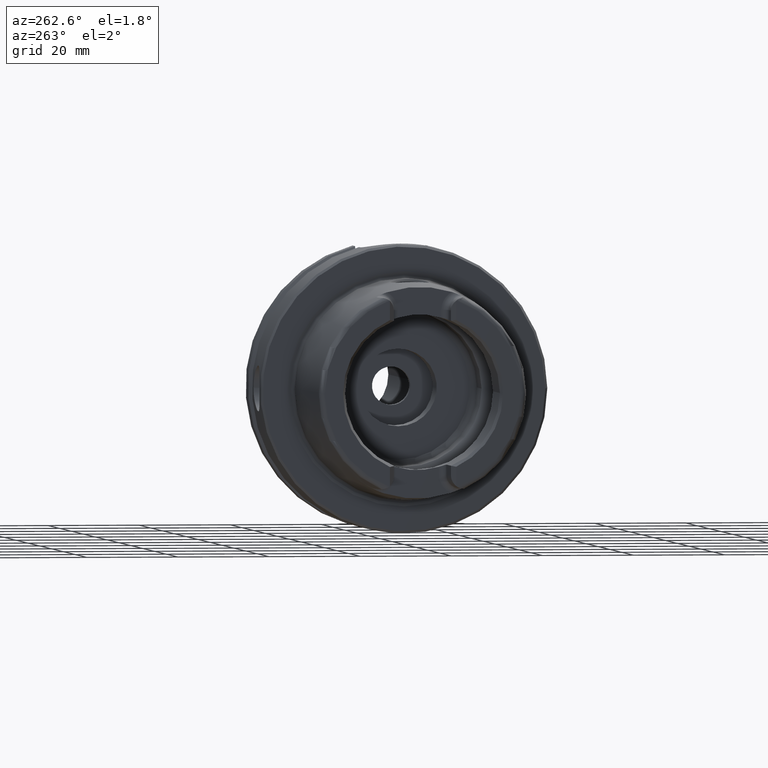
[diagram: clean part render]
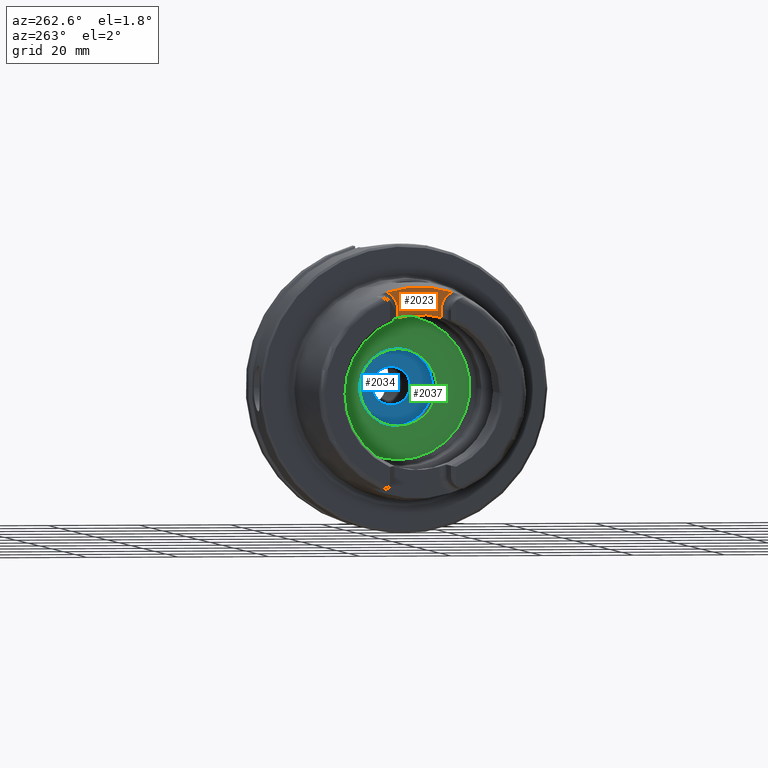
[diagram: same view with three faces highlighted in distinct colors, each labeled with its STEP entity id]
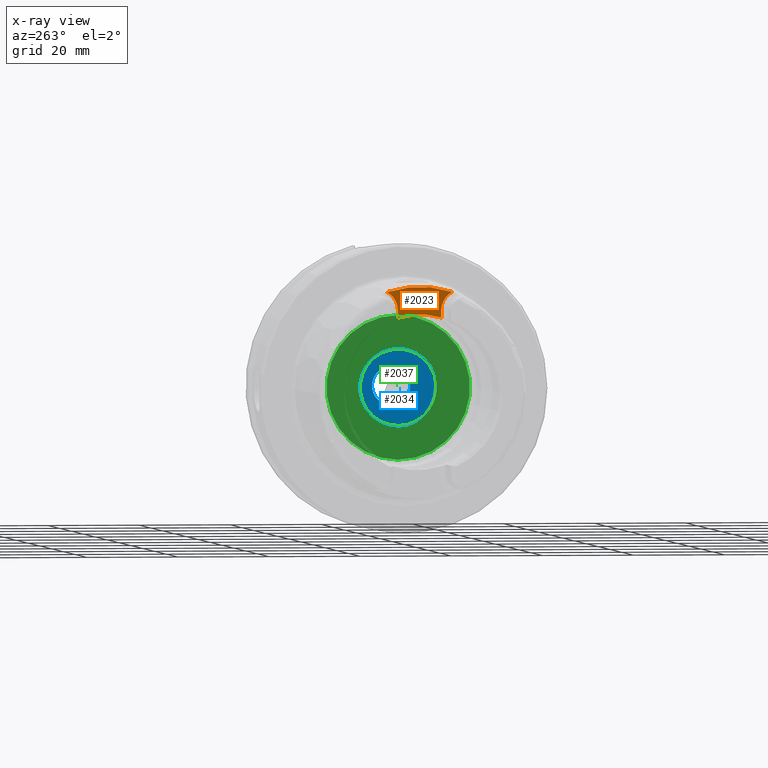
[diagram: x-ray of the same camera — body ghosted, the three highlighted faces saturated]
A machine part, auxiliary view with three faces highlighted in distinct colors.
The next image is the same camera in x-ray (body ghosted, the three faces saturated) — at least one of them is partly hidden behind the body in this view.
Their STEP definitions:

[orange] entity #2023 — the highlighted planar face has unit normal (-1, 0, 0).
#142=PLANE('',#2260);
#298=FACE_OUTER_BOUND('',#421,.T.);
#421=EDGE_LOOP('',(#1792,#1793,#1794,#1795,#1796,#1797));
#541=LINE('',#4207,#647);
#542=LINE('',#4236,#648);
#647=VECTOR('',#2738,10.);
#648=VECTOR('',#2751,10.);
#697=CIRCLE('',#2140,23.0180260521042);
#742=CIRCLE('',#2236,4.38);
#744=CIRCLE('',#2239,4.38);
#754=CIRCLE('',#2261,17.);
#864=VERTEX_POINT('',#3398);
#865=VERTEX_POINT('',#3413);
#958=VERTEX_POINT('',#4204);
#959=VERTEX_POINT('',#4206);
#960=VERTEX_POINT('',#4221);
#961=VERTEX_POINT('',#4225);
#1087=EDGE_CURVE('',#864,#865,#697,.T.);
#1234=EDGE_CURVE('',#958,#959,#541,.T.);
#1236=EDGE_CURVE('',#865,#958,#742,.T.);
#1238=EDGE_CURVE('',#960,#864,#744,.T.);
#1240=EDGE_CURVE('',#961,#960,#542,.T.);
#1256=EDGE_CURVE('',#959,#961,#754,.T.);
#1792=ORIENTED_EDGE('',*,*,#1236,.F.);
#1793=ORIENTED_EDGE('',*,*,#1087,.F.);
#1794=ORIENTED_EDGE('',*,*,#1238,.F.);
#1795=ORIENTED_EDGE('',*,*,#1240,.F.);
#1796=ORIENTED_EDGE('',*,*,#1256,.F.);
#1797=ORIENTED_EDGE('',*,*,#1234,.F.);
#2023=ADVANCED_FACE('',(#298),#142,.T.);
#2140=AXIS2_PLACEMENT_3D('',#3414,#2496,#2497);
#2236=AXIS2_PLACEMENT_3D('',#4219,#2741,#2742);
#2239=AXIS2_PLACEMENT_3D('',#4223,#2747,#2748);
#2260=AXIS2_PLACEMENT_3D('',#4284,#2794,#2795);
#2261=AXIS2_PLACEMENT_3D('',#4285,#2796,#2797);
#2496=DIRECTION('center_axis',(1.,0.,0.));
#2497=DIRECTION('ref_axis',(0.,1.,0.));
#2738=DIRECTION('',(0.,-1.58830189502884E-16,-1.));
#2741=DIRECTION('center_axis',(-1.,0.,0.));
#2742=DIRECTION('ref_axis',(0.,0.601141749549969,0.799142413433302));
#2747=DIRECTION('center_axis',(-1.,0.,0.));
#2748=DIRECTION('ref_axis',(0.,-0.601141749549969,0.799142413433301));
#2751=DIRECTION('',(0.,-1.58830189502884E-16,1.));
#2794=DIRECTION('center_axis',(-1.,0.,0.));
#2795=DIRECTION('ref_axis',(0.,0.,1.));
#2796=DIRECTION('center_axis',(-1.,0.,0.));
#2797=DIRECTION('ref_axis',(0.,1.,0.));
#3398=CARTESIAN_POINT('',(-26.,7.14127219004964,21.8822246319466));
#3413=CARTESIAN_POINT('',(-26.,-7.14127219004964,21.8822246319466));
#3414=CARTESIAN_POINT('Origin',(-26.,0.,0.));
#4204=CARTESIAN_POINT('',(-26.,-4.77,17.99));
#4206=CARTESIAN_POINT('',(-26.,-4.77,16.3170800083839));
#4207=CARTESIAN_POINT('',(-26.,-4.77,14.75));
#4219=CARTESIAN_POINT('Origin',(-26.,-9.15,17.99));
#4221=CARTESIAN_POINT('',(-26.,4.77,17.99));
#4223=CARTESIAN_POINT('Origin',(-26.,9.15,17.99));
#4225=CARTESIAN_POINT('',(-26.,4.77,16.3170800083839));
#4236=CARTESIAN_POINT('',(-26.,4.77,18.245));
#4284=CARTESIAN_POINT('Origin',(-26.,-2.22044604925031E-15,18.5));
#4285=CARTESIAN_POINT('Origin',(-26.,0.,0.));

[blue] entity #2034 — the highlighted planar face has unit normal (1, 0, 0).
#104=FACE_BOUND('',#433,.T.);
#146=PLANE('',#2286);
#309=FACE_OUTER_BOUND('',#432,.T.);
#432=EDGE_LOOP('',(#1858));
#433=EDGE_LOOP('',(#1859));
#682=CIRCLE('',#2104,4.2);
#769=CIRCLE('',#2287,9.5);
#812=VERTEX_POINT('',#2991);
#973=VERTEX_POINT('',#4320);
#1021=EDGE_CURVE('',#812,#812,#682,.T.);
#1273=EDGE_CURVE('',#973,#973,#769,.T.);
#1858=ORIENTED_EDGE('',*,*,#1273,.T.);
#1859=ORIENTED_EDGE('',*,*,#1021,.T.);
#2034=ADVANCED_FACE('',(#309,#104),#146,.F.);
#2104=AXIS2_PLACEMENT_3D('',#2992,#2399,#2400);
#2286=AXIS2_PLACEMENT_3D('',#4319,#2848,#2849);
#2287=AXIS2_PLACEMENT_3D('',#4321,#2850,#2851);
#2399=DIRECTION('center_axis',(1.,0.,0.));
#2400=DIRECTION('ref_axis',(0.,0.,1.));
#2848=DIRECTION('center_axis',(1.,0.,0.));
#2849=DIRECTION('ref_axis',(0.,0.,-1.));
#2850=DIRECTION('center_axis',(-1.,0.,0.));
#2851=DIRECTION('ref_axis',(0.,0.,1.));
#2991=CARTESIAN_POINT('',(22.,-5.14351655641888E-16,-4.2));
#2992=CARTESIAN_POINT('Origin',(22.,0.,0.));
#4319=CARTESIAN_POINT('Origin',(22.,9.5,0.));
#4320=CARTESIAN_POINT('',(22.,-9.5,1.16341445918999E-15));
#4321=CARTESIAN_POINT('Origin',(22.,0.,0.));

[green] entity #2037 — the highlighted planar face has unit normal (1, 0, 0).
#106=FACE_BOUND('',#438,.T.);
#148=PLANE('',#2291);
#312=FACE_OUTER_BOUND('',#437,.T.);
#437=EDGE_LOOP('',(#1866));
#438=EDGE_LOOP('',(#1867));
#764=CIRCLE('',#2280,8.458734);
#771=CIRCLE('',#2292,15.75);
#969=VERTEX_POINT('',#4308);
#975=VERTEX_POINT('',#4328);
#1267=EDGE_CURVE('',#969,#969,#764,.T.);
#1276=EDGE_CURVE('',#975,#975,#771,.T.);
#1866=ORIENTED_EDGE('',*,*,#1276,.T.);
#1867=ORIENTED_EDGE('',*,*,#1267,.T.);
#2037=ADVANCED_FACE('',(#312,#106),#148,.F.);
#2280=AXIS2_PLACEMENT_3D('',#4309,#2835,#2836);
#2291=AXIS2_PLACEMENT_3D('',#4327,#2859,#2860);
#2292=AXIS2_PLACEMENT_3D('',#4329,#2861,#2862);
#2835=DIRECTION('center_axis',(1.,0.,0.));
#2836=DIRECTION('ref_axis',(0.,0.,1.));
#2859=DIRECTION('center_axis',(1.,0.,0.));
#2860=DIRECTION('ref_axis',(0.,0.,-1.));
#2861=DIRECTION('center_axis',(-1.,0.,0.));
#2862=DIRECTION('ref_axis',(0.,0.,1.));
#4308=CARTESIAN_POINT('',(10.,-1.03589615179389E-15,-8.458734));
#4309=CARTESIAN_POINT('Origin',(10.,0.,0.));
#4327=CARTESIAN_POINT('Origin',(10.,15.75,0.));
#4328=CARTESIAN_POINT('',(10.,-1.92881870865708E-15,-15.75));
#4329=CARTESIAN_POINT('Origin',(10.,0.,0.));